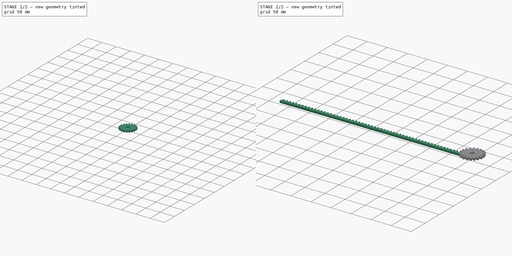
[diagram: build sequence overview — one tinted view per stage of 2, left to right]
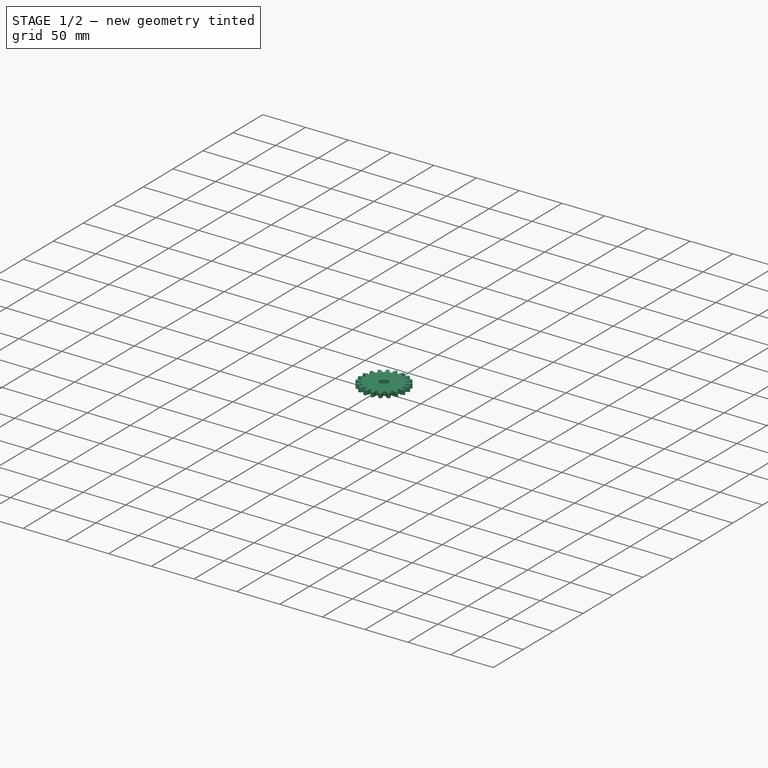
[diagram: stage 1 of 2 — iso view after this stage's code; geometry added in this stage tinted green]
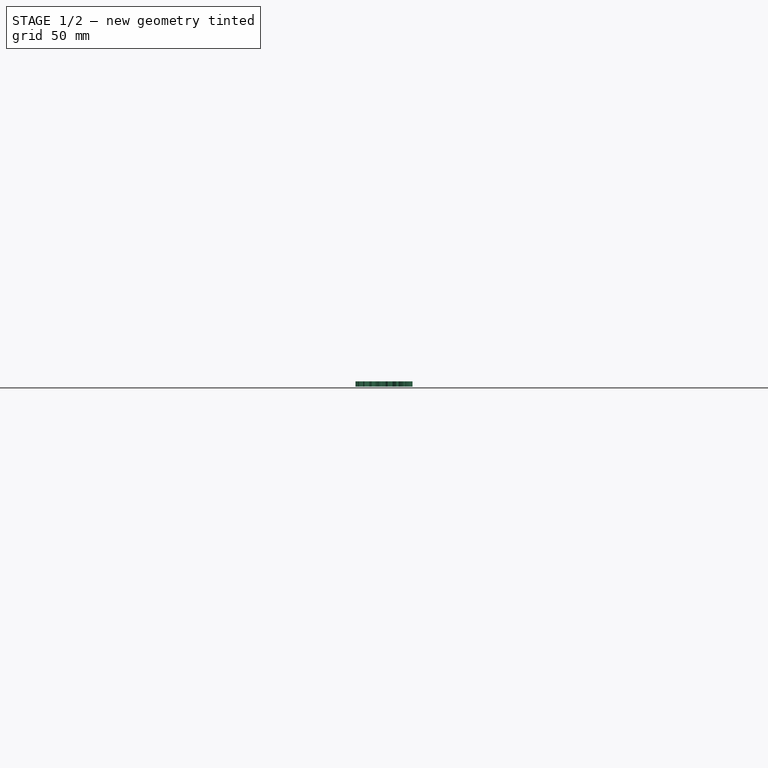
[diagram: stage 1 of 2 — front view after this stage's code; geometry added in this stage tinted green]
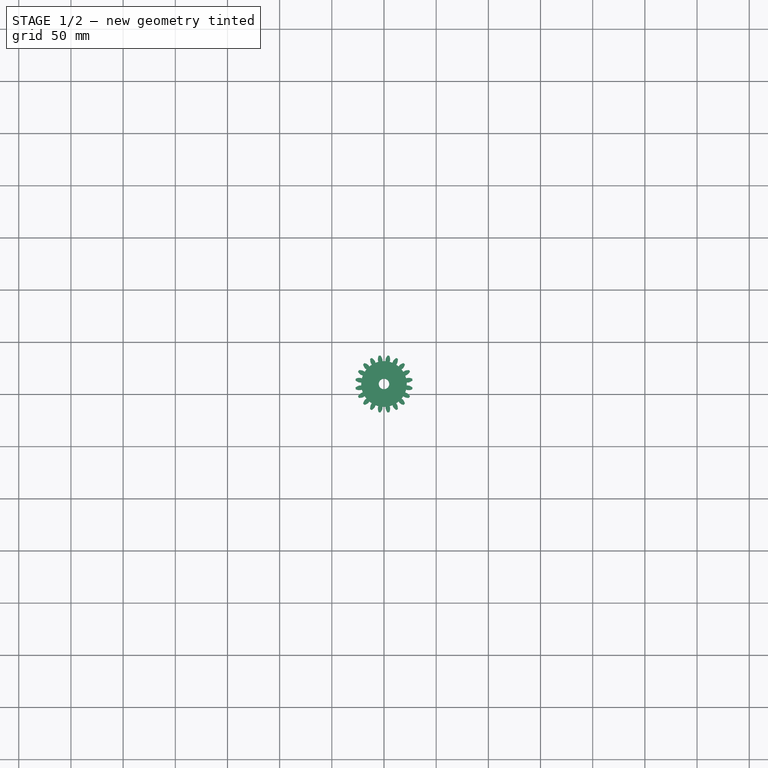
[diagram: stage 1 of 2 — top view after this stage's code; geometry added in this stage tinted green]
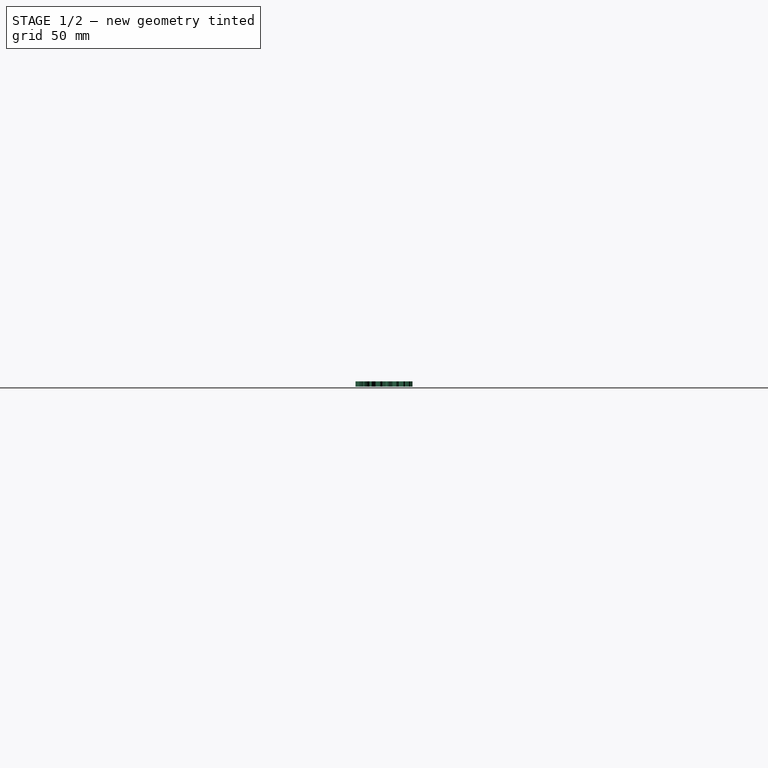
[diagram: stage 1 of 2 — right view after this stage's code; geometry added in this stage tinted green]
FCSTD DOCUMENT  (FreeCAD 0.20R29177 +426 (Git))
Label: Piñon cremayera 20 60
License: All rights reserved
LicenseURL: http://en.wikipedia.org/wiki/All_rights_reserved
objects: Part::FeaturePython×1, PartDesign::FeaturePython×1, Sketcher::SketchObject×1, PartDesign::Pocket×1, PartDesign::Body×1
note: 6 computed .brp shape members not serialized (recipe doc carries the construction recipe); baked Part::Feature solids carry a one-line shape summary decoded from their .brp

FEATURE [PartDesign::FeaturePython] InvoluteGear  # WARN: FeaturePython — macro-defined, semantics opaque (R4)
  AttacherType = Attacher::AttachEngine3D
  Placement = pos=(0,10,0) rot=(0,0,1;0.15708rad)
  angular_backlash = 0
  backlash = 0
  beta = 0
  clearance = 0.25
  da = 55
  df = 43.75
  double_helix = false
  dw = 50
  head = 0
  head_fillet = 0
  height = 5
  module = 2.5
  numpoints = 6
  pressure_angle = 20
  properties_from_tool = false
  reversed_backlash = false
  root_fillet = 0
  shift = 0
  simple = false
  teeth = 20
  transverse_pitch = 7.85398
  traverse_module = 2.5
  undercut = false
  version = 0.0.4
  expr: angular_backlash = backlash / dw * 360° / pi
FEATURE [Sketcher::SketchObject] Sketch
  FullyConstrained = true
  MapMode = 5
  Placement = pos=(-2e-16,10,5) rot=(0,0,1;0.15708rad)
  Support = -> [InvoluteGear]
  sketch-geometry (1):
    g0: Circle CenterX=0 CenterY=0 CenterZ=0 NormalX=0 NormalY=0 NormalZ=1 AngleXU=0 Radius=5
  constraints (2):
    c: Coincident(g0,g-1)
    c: Diameter(g0) = 10
FEATURE [PartDesign::Pocket] Pocket
  BaseFeature = -> InvoluteGear
  Direction = (0,0,-1)
  Length = 5
  Length2 = 5
  Placement = pos=(0,10,0) rot=(0,0,1;0.15708rad)
  Profile = -> Sketch
  ReferenceAxis = -> Sketch [N_Axis]
  Type = 1
FEATURE [PartDesign::Body] Body
  Group = -> [InvoluteGear,Sketch,Pocket]
  Origin = -> Origin
  Placement = pos=(0,15,0) rot=(0,0,1;0rad)
  Tip = -> Pocket
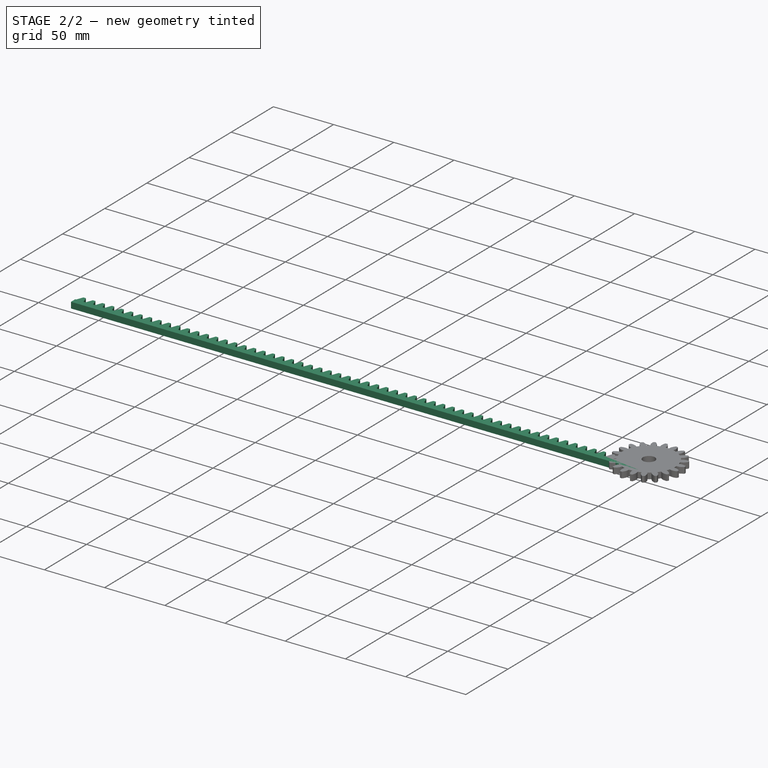
[diagram: stage 2 of 2 — iso view after this stage's code; geometry added in this stage tinted green]
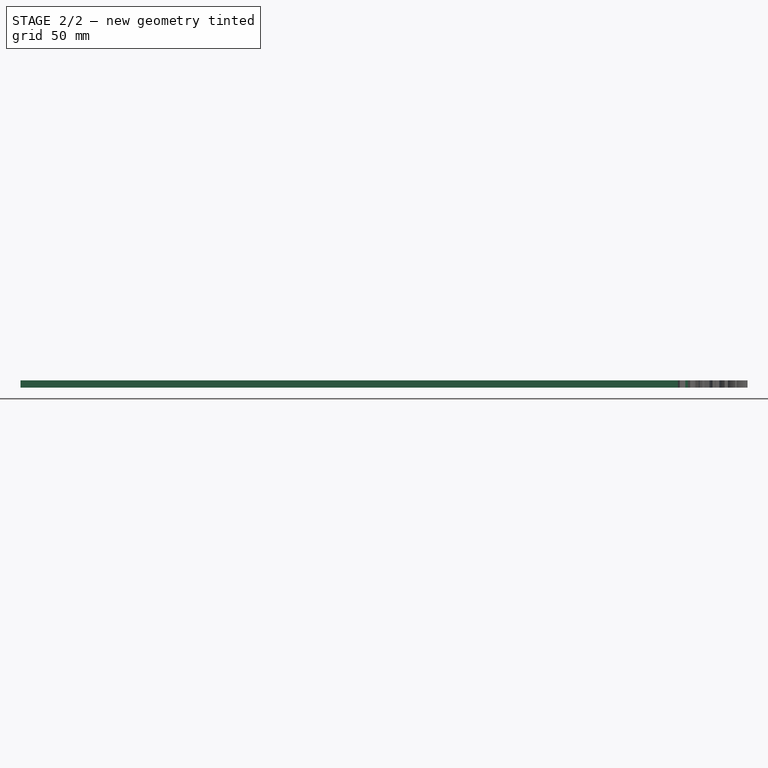
[diagram: stage 2 of 2 — front view after this stage's code; geometry added in this stage tinted green]
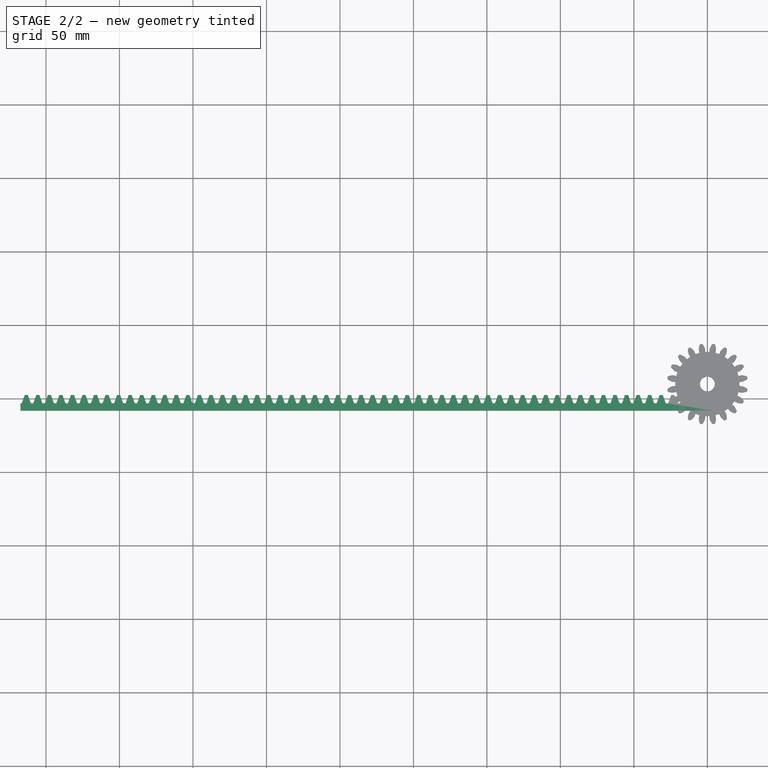
[diagram: stage 2 of 2 — top view after this stage's code; geometry added in this stage tinted green]
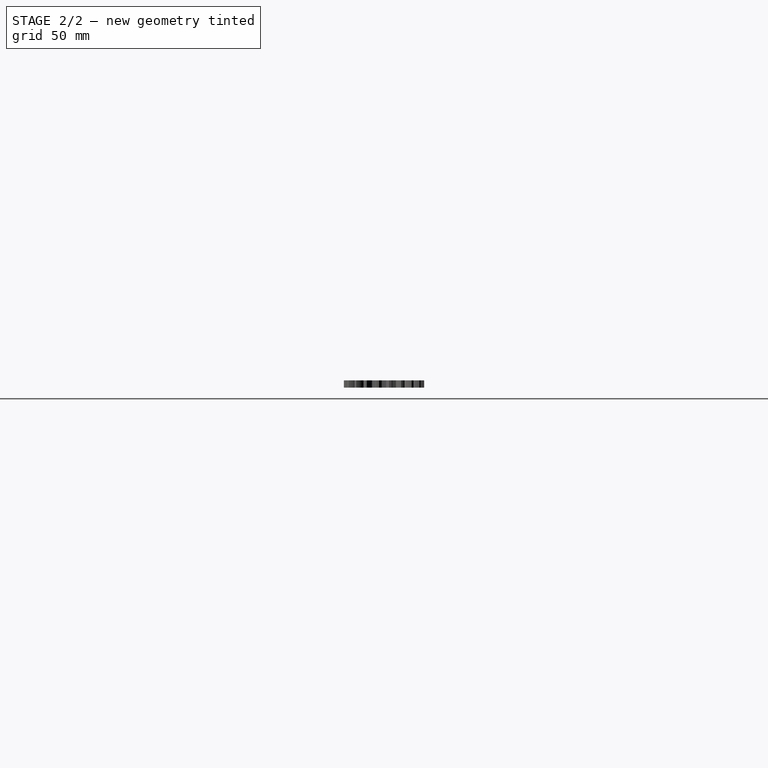
[diagram: stage 2 of 2 — right view after this stage's code; geometry added in this stage tinted green]
FEATURE [Part::FeaturePython] InvoluteRack  # WARN: FeaturePython — macro-defined, semantics opaque (R4)
  AttacherType = Attacher::AttachEngine3D
  Placement = pos=(0,0,0) rot=(0,0,1;1.5708rad)
  add_endings = true
  beta = 0
  clearance = 0.25
  double_helix = false
  head = 0
  head_fillet = 0
  height = 5
  module = 2.5
  pressure_angle = 20
  properties_from_tool = false
  root_fillet = 0
  simplified = false
  teeth = 60
  thickness = 5
  transverse_pitch = 7.85398
  version = 0.0.4
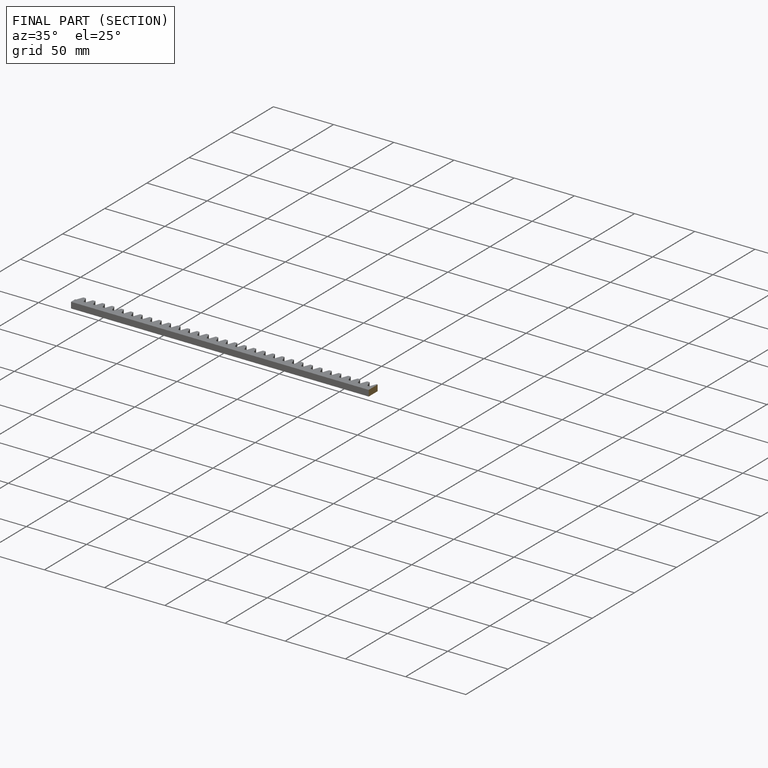
[diagram: finished part — half-section view (interior)]
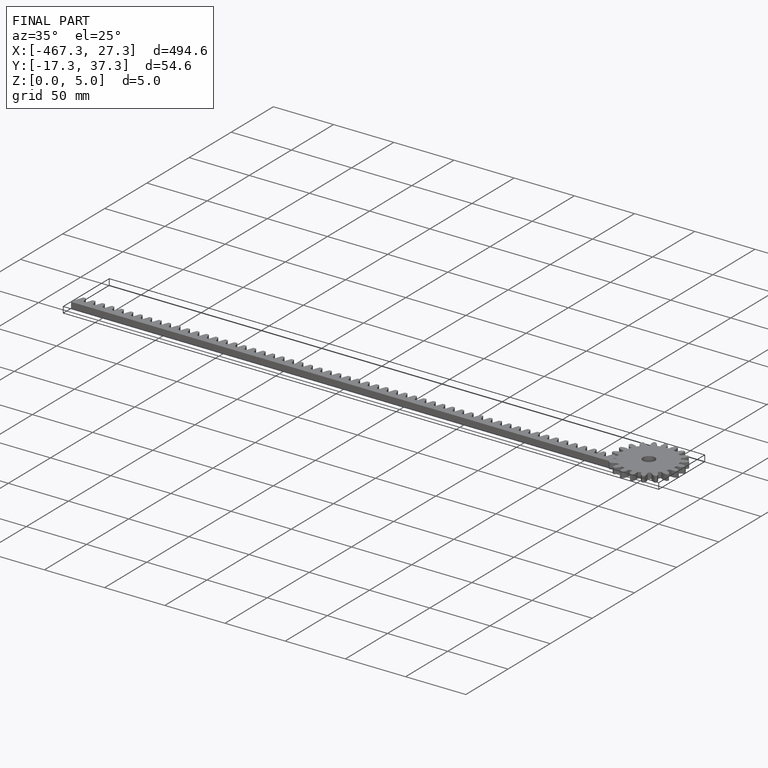
[diagram: finished part — iso view with bounding-box wireframe]
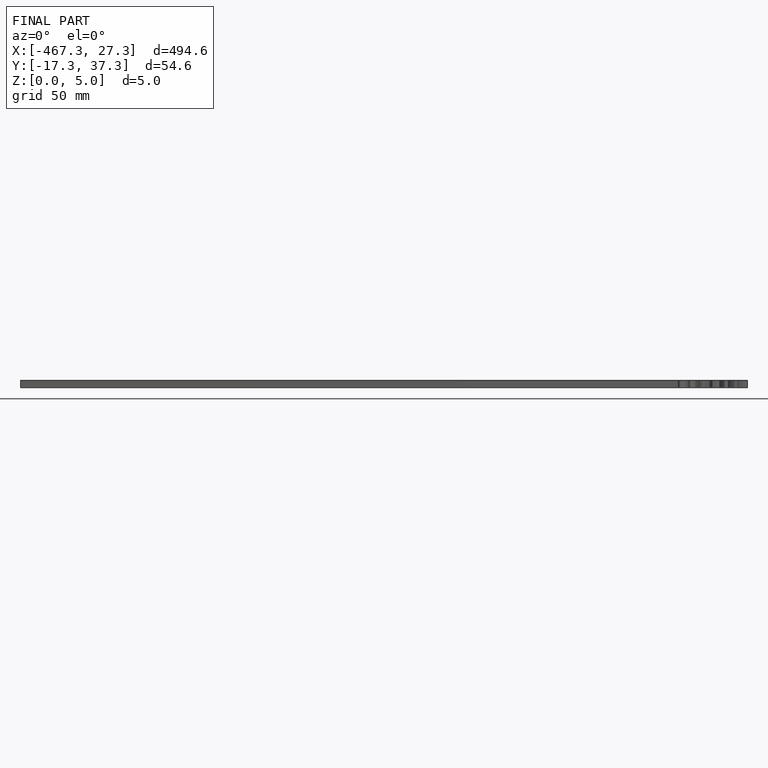
[diagram: finished part — front view with bounding-box wireframe]
